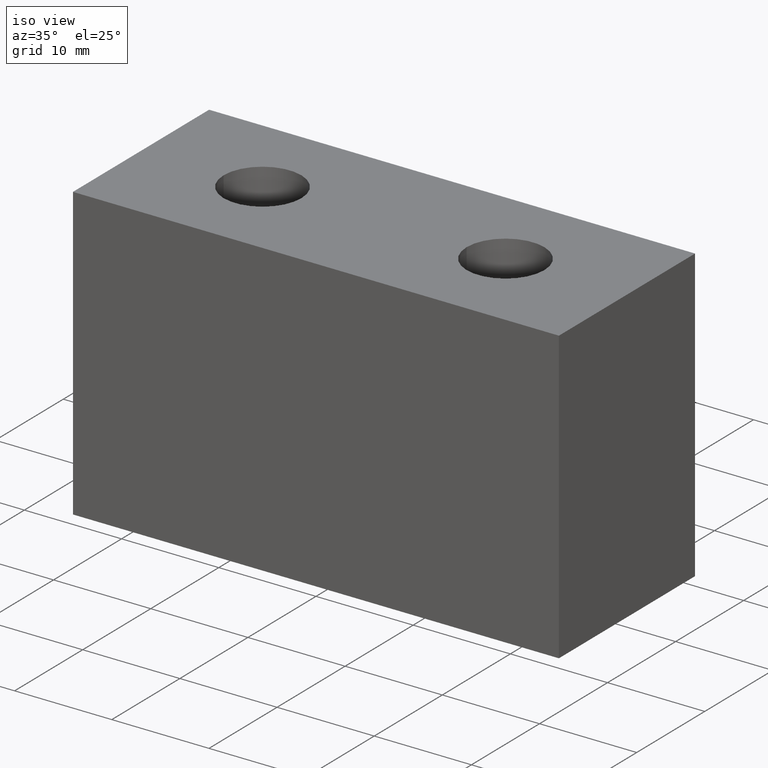
[diagram: clean part render]
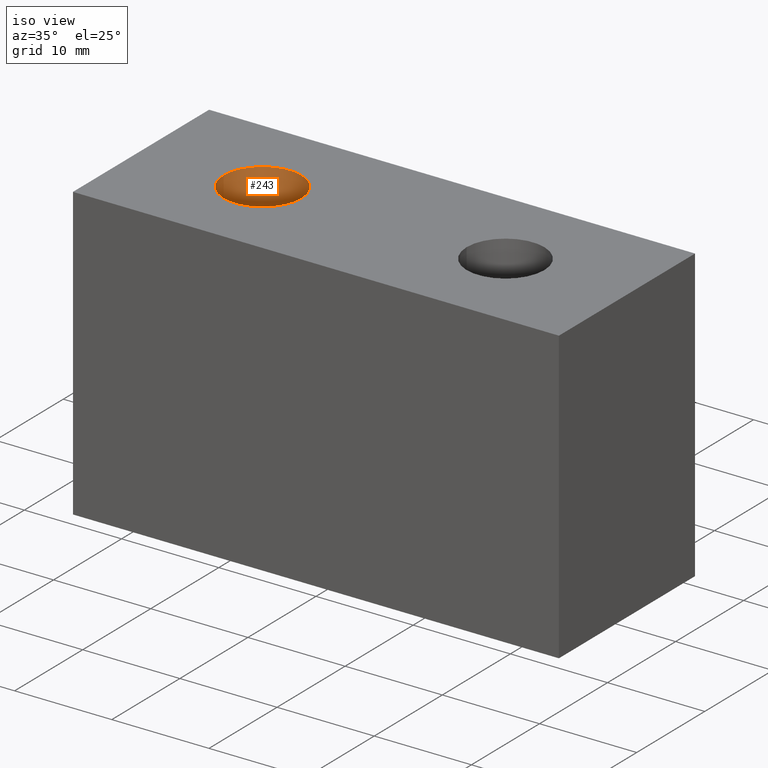
[diagram: same view with one face highlighted and labeled with its STEP entity id]
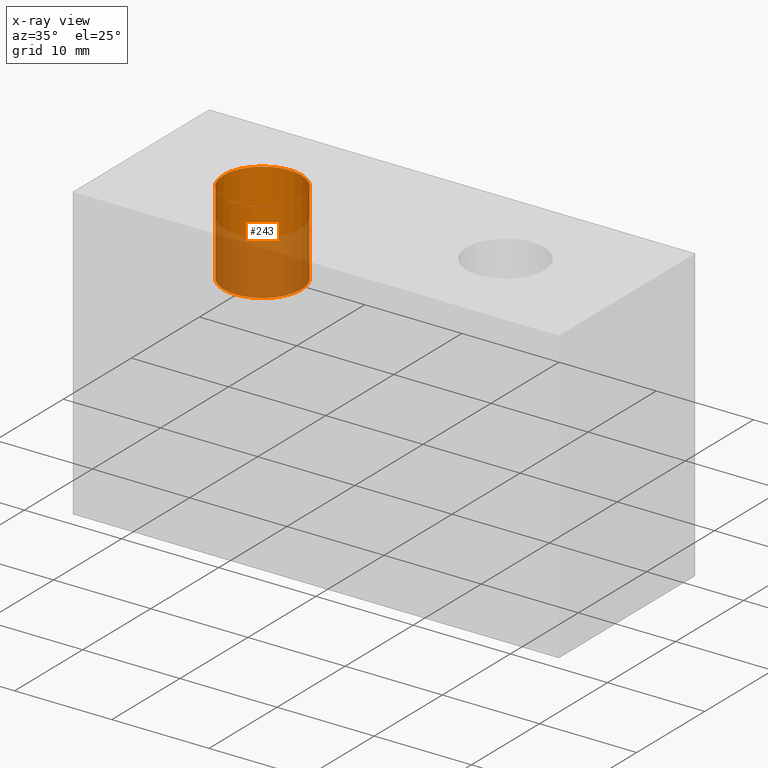
[diagram: x-ray of the same camera — body ghosted, the highlighted face saturated]
A machine part, iso view. The second image highlights one B-rep face of the part: STEP entity #243.
The next image is the same camera in x-ray: the body ghosted, the highlighted face saturated — about 50% of this face is hidden behind the body in this view.
In plain terms, the highlighted cylindrical surface (bore or boss wall) has radius 4 mm, axis along (0, 0, 1).
Its self-contained STEP definition (entity closure, byte-faithful):
#39=FACE_OUTER_BOUND('',#58,.T.);
#58=EDGE_LOOP('',(#189,#190,#191,#192));
#76=LINE('',#412,#94);
#94=VECTOR('',#343,4.);
#118=CIRCLE('',#292,4.);
#119=CIRCLE('',#293,4.);
#130=VERTEX_POINT('',#409);
#131=VERTEX_POINT('',#411);
#153=EDGE_CURVE('',#130,#130,#118,.T.);
#154=EDGE_CURVE('',#130,#131,#76,.T.);
#155=EDGE_CURVE('',#131,#131,#119,.T.);
#189=ORIENTED_EDGE('',*,*,#153,.F.);
#190=ORIENTED_EDGE('',*,*,#154,.T.);
#191=ORIENTED_EDGE('',*,*,#155,.F.);
#192=ORIENTED_EDGE('',*,*,#154,.F.);
#234=CYLINDRICAL_SURFACE('',#291,4.);
#243=ADVANCED_FACE('',(#39),#234,.F.);
#291=AXIS2_PLACEMENT_3D('',#408,#339,#340);
#292=AXIS2_PLACEMENT_3D('',#410,#341,#342);
#293=AXIS2_PLACEMENT_3D('',#413,#344,#345);
#339=DIRECTION('center_axis',(0.,0.,1.));
#340=DIRECTION('ref_axis',(1.,0.,0.));
#341=DIRECTION('center_axis',(0.,0.,-1.));
#342=DIRECTION('ref_axis',(1.,0.,0.));
#343=DIRECTION('',(0.,0.,-1.));
#344=DIRECTION('center_axis',(0.,0.,1.));
#345=DIRECTION('ref_axis',(1.,0.,0.));
#408=CARTESIAN_POINT('Origin',(-12.5,-1.58255604831184E-15,25.75));
#409=CARTESIAN_POINT('',(-16.5,-2.07241476797078E-15,30.));
#410=CARTESIAN_POINT('Origin',(-12.5,-1.58255604831184E-15,30.));
#411=CARTESIAN_POINT('',(-16.5,-2.07241476797078E-15,21.5));
#412=CARTESIAN_POINT('',(-16.5,-2.07241476797078E-15,25.75));
#413=CARTESIAN_POINT('Origin',(-12.5,-1.58255604831184E-15,21.5));